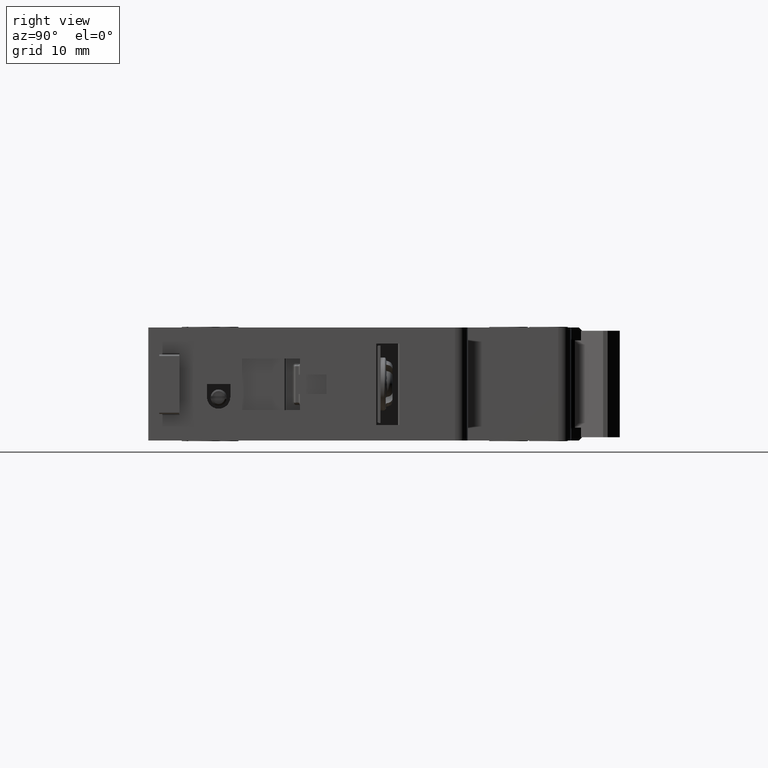
[diagram: clean part render]
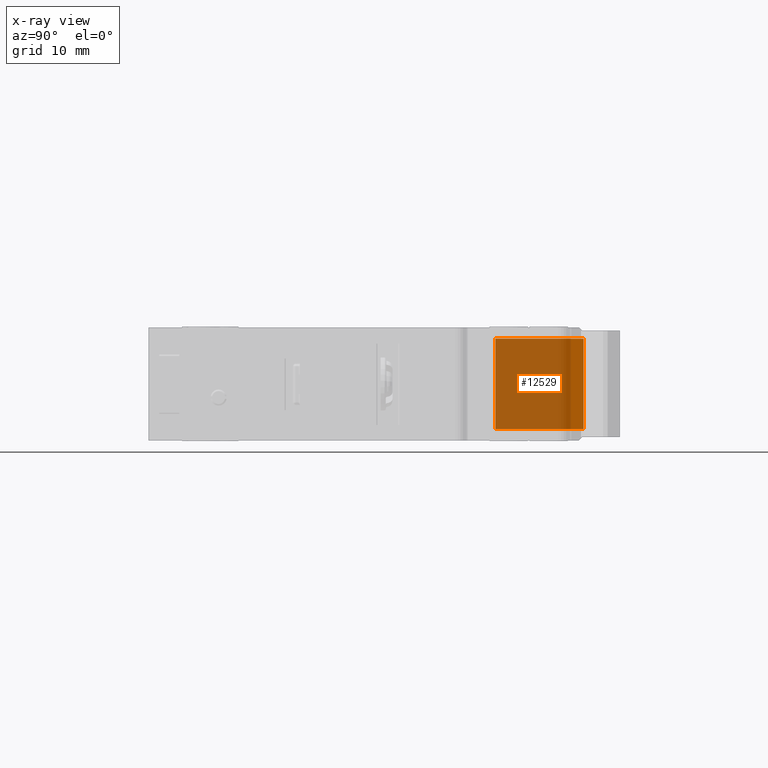
[diagram: x-ray — body ghosted, one internal face saturated and labeled with its STEP entity id]
A machine part, right view, then the same camera in x-ray: the body is ghosted and one INTERNAL B-rep face — a face not visible from any outside direction — is saturated and labeled: STEP entity #12529.
In plain terms, the highlighted planar face has unit normal (-1, 0, 0).
Its self-contained STEP definition (entity closure, byte-faithful):
#676 = AXIS2_PLACEMENT_3D ( 'NONE', #11360, #3516, #12654 ) ;
#1177 = CARTESIAN_POINT ( 'NONE',  ( 41.83866221174999100, 67.41230959868069300, -6.999999999999991100 ) ) ;
#1180 = VERTEX_POINT ( 'NONE', #10712 ) ;
#2162 = PLANE ( 'NONE',  #676 ) ;
#2757 = VECTOR ( 'NONE', #7303, 1000.000000000000000 ) ;
#2798 = FACE_OUTER_BOUND ( 'NONE', #11432, .T. ) ;
#2800 = VERTEX_POINT ( 'NONE', #5157 ) ;
#3516 = DIRECTION ( 'NONE',  ( -1.000000000000000000, 0.0000000000000000000, 0.0000000000000000000 ) ) ;
#3599 = LINE ( 'NONE', #14919, #2757 ) ;
#3935 = ORIENTED_EDGE ( 'NONE', *, *, #8844, .T. ) ;
#4345 = LINE ( 'NONE', #4531, #14656 ) ;
#4531 = CARTESIAN_POINT ( 'NONE',  ( 41.83866221174999100, 53.79999999999999700, -6.999999999999990200 ) ) ;
#5157 = CARTESIAN_POINT ( 'NONE',  ( 41.83866221174999100, 53.79999999999999700, -6.999999999999990200 ) ) ;
#5790 = VECTOR ( 'NONE', #9530, 1000.000000000000000 ) ;
#6127 = ORIENTED_EDGE ( 'NONE', *, *, #13826, .T. ) ;
#6223 = EDGE_CURVE ( 'NONE', #2800, #14571, #3599, .T. ) ;
#7303 = DIRECTION ( 'NONE',  ( 0.0000000000000000000, 0.0000000000000000000, 1.000000000000000000 ) ) ;
#8034 = VERTEX_POINT ( 'NONE', #1177 ) ;
#8844 = EDGE_CURVE ( 'NONE', #14571, #1180, #16472, .T. ) ;
#9386 = EDGE_CURVE ( 'NONE', #2800, #8034, #4345, .T. ) ;
#9530 = DIRECTION ( 'NONE',  ( 0.0000000000000000000, 0.0000000000000000000, -1.000000000000000000 ) ) ;
#9668 = LINE ( 'NONE', #12035, #5790 ) ;
#10516 = DIRECTION ( 'NONE',  ( -0.0000000000000000000, 1.000000000000000000, -0.0000000000000000000 ) ) ;
#10712 = CARTESIAN_POINT ( 'NONE',  ( 41.83866221174999100, 67.41230959868069300, 7.000000000000000000 ) ) ;
#11123 = CARTESIAN_POINT ( 'NONE',  ( 41.83866221174999100, 53.79999999999999700, 7.000000000000000000 ) ) ;
#11360 = CARTESIAN_POINT ( 'NONE',  ( 41.83866221174999100, 53.79999999999999700, 0.0000000000000000000 ) ) ;
#11432 = EDGE_LOOP ( 'NONE', ( #6127, #13229, #11520, #3935 ) ) ;
#11520 = ORIENTED_EDGE ( 'NONE', *, *, #6223, .T. ) ;
#12035 = CARTESIAN_POINT ( 'NONE',  ( 41.83866221174999100, 67.41230959868070700, 8.750000000000000000 ) ) ;
#12328 = DIRECTION ( 'NONE',  ( -0.0000000000000000000, 1.000000000000000000, -0.0000000000000000000 ) ) ;
#12529 = ADVANCED_FACE ( 'NONE', ( #2798 ), #2162, .T. ) ;
#12654 = DIRECTION ( 'NONE',  ( 0.0000000000000000000, 0.0000000000000000000, 1.000000000000000000 ) ) ;
#13082 = VECTOR ( 'NONE', #10516, 1000.000000000000000 ) ;
#13229 = ORIENTED_EDGE ( 'NONE', *, *, #9386, .F. ) ;
#13826 = EDGE_CURVE ( 'NONE', #1180, #8034, #9668, .T. ) ;
#14266 = CARTESIAN_POINT ( 'NONE',  ( 41.83866221174999100, 53.79999999999999700, 7.000000000000000000 ) ) ;
#14571 = VERTEX_POINT ( 'NONE', #11123 ) ;
#14656 = VECTOR ( 'NONE', #12328, 1000.000000000000000 ) ;
#14919 = CARTESIAN_POINT ( 'NONE',  ( 41.83866221174999100, 53.79999999999999700, 0.0000000000000000000 ) ) ;
#16472 = LINE ( 'NONE', #14266, #13082 ) ;